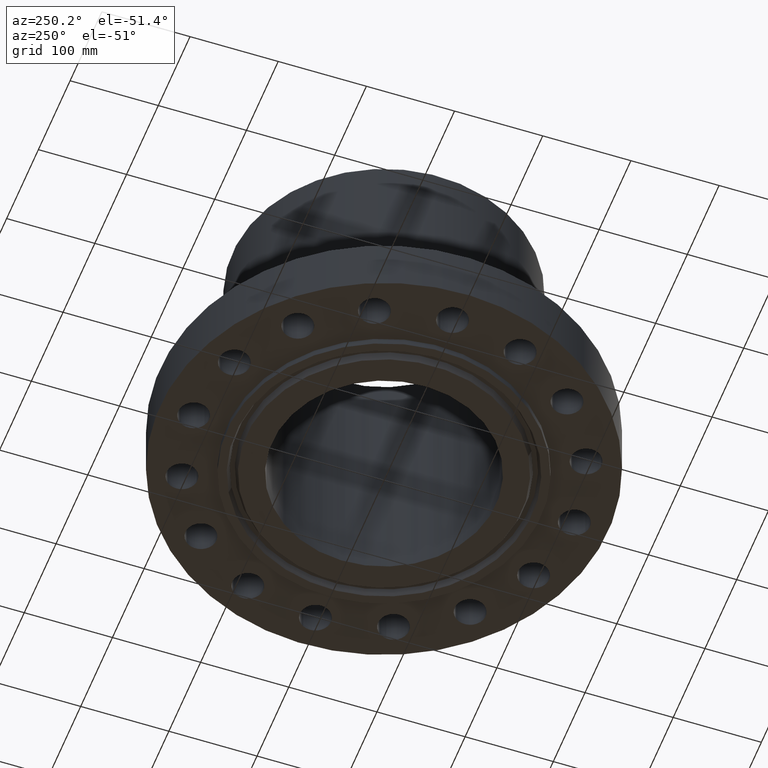
[diagram: clean part render]
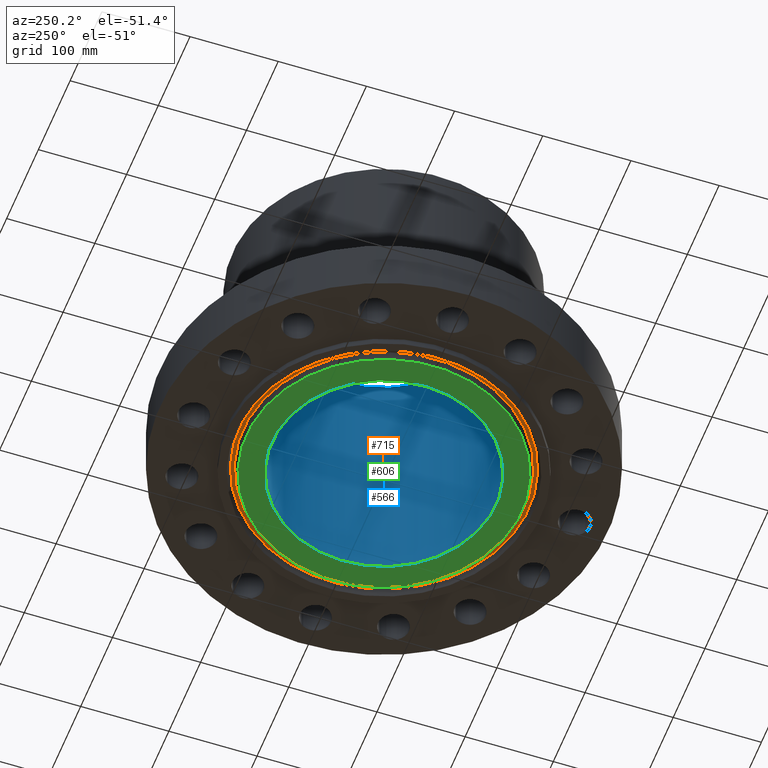
[diagram: same view with three faces highlighted in distinct colors, each labeled with its STEP entity id]
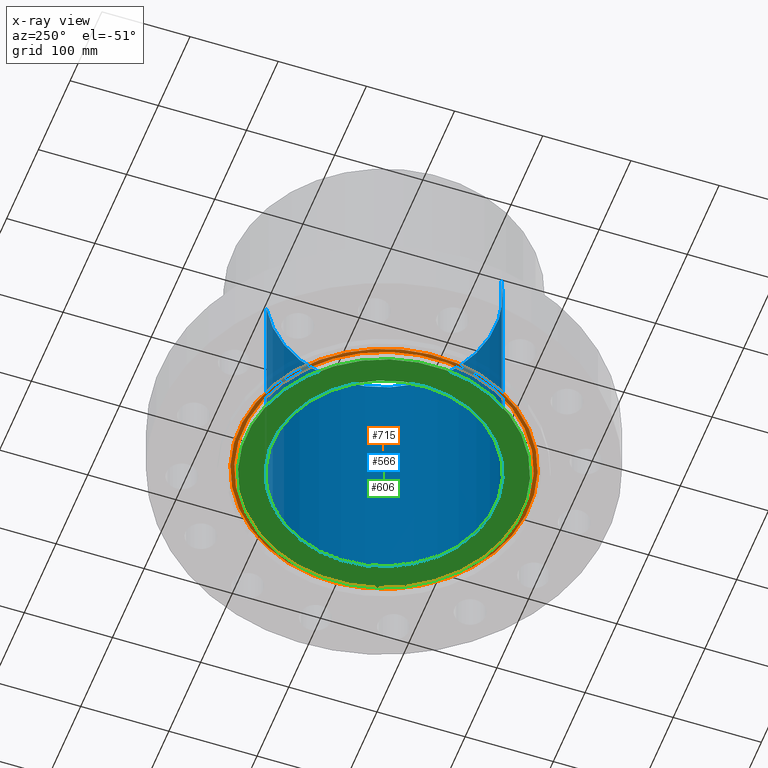
[diagram: x-ray of the same camera — body ghosted, the three highlighted faces saturated]
A machine part, auxiliary view with three faces highlighted in distinct colors.
The next image is the same camera in x-ray (body ghosted, the three faces saturated) — at least one of them is partly hidden behind the body in this view.
Their STEP definitions:

[orange] entity #715 — the highlighted planar face has unit normal (0, 0, -1).
#78=AXIS2_PLACEMENT_3D('Plane Axis2P3D',#75,#76,#77) ;
#664=AXIS2_PLACEMENT_3D('Circle Axis2P3D',#662,#663,$) ;
#683=AXIS2_PLACEMENT_3D('Circle Axis2P3D',#681,#682,$) ;
#695=AXIS2_PLACEMENT_3D('Circle Axis2P3D',#693,#694,$) ;
#704=AXIS2_PLACEMENT_3D('Circle Axis2P3D',#702,#703,$) ;
#75=CARTESIAN_POINT('Axis2P3D Location',(0.,6.2938790699,0.)) ;
#659=CARTESIAN_POINT('Vertex',(-3.01744636299,-5.52339851839,3.36563672819E-016)) ;
#662=CARTESIAN_POINT('Axis2P3D Location',(0.,0.,3.36563672819E-016)) ;
#666=CARTESIAN_POINT('Vertex',(3.01744636299,5.52339851839,3.36563672819E-016)) ;
#681=CARTESIAN_POINT('Axis2P3D Location',(0.,0.,3.36563672819E-016)) ;
#693=CARTESIAN_POINT('Axis2P3D Location',(0.,0.,0.)) ;
#697=CARTESIAN_POINT('Vertex',(-3.09522925423,-5.66577914576,-1.22386790116E-016)) ;
#699=CARTESIAN_POINT('Vertex',(3.09522925423,5.66577914576,-1.22386790116E-016)) ;
#702=CARTESIAN_POINT('Axis2P3D Location',(0.,0.,0.)) ;
#76=DIRECTION('Axis2P3D Direction',(0.,0.,-0.0393700787402)) ;
#77=DIRECTION('Axis2P3D XDirection',(0.0393700787402,0.,0.)) ;
#663=DIRECTION('Axis2P3D Direction',(0.,0.,-0.0393700787402)) ;
#682=DIRECTION('Axis2P3D Direction',(0.,0.,-0.0393700787402)) ;
#694=DIRECTION('Axis2P3D Direction',(0.,0.,-0.0393700787402)) ;
#703=DIRECTION('Axis2P3D Direction',(0.,0.,-0.0393700787402)) ;
#708=ORIENTED_EDGE('',*,*,#701,.T.) ;
#709=ORIENTED_EDGE('',*,*,#706,.T.) ;
#712=ORIENTED_EDGE('',*,*,#685,.F.) ;
#713=ORIENTED_EDGE('',*,*,#668,.F.) ;
#714=FACE_BOUND('',#711,.T.) ;
#715=ADVANCED_FACE('PartBody',(#710,#714),#79,.T.) ;
#665=CIRCLE('generated circle',#664,6.2938790699) ;
#684=CIRCLE('generated circle',#683,6.2938790699) ;
#696=CIRCLE('generated circle',#695,6.45612093016) ;
#705=CIRCLE('generated circle',#704,6.45612093016) ;
#668=EDGE_CURVE('',#660,#667,#665,.T.) ;
#685=EDGE_CURVE('',#667,#660,#684,.T.) ;
#701=EDGE_CURVE('',#698,#700,#696,.T.) ;
#706=EDGE_CURVE('',#700,#698,#705,.T.) ;
#707=EDGE_LOOP('',(#708,#709)) ;
#711=EDGE_LOOP('',(#712,#713)) ;
#710=FACE_OUTER_BOUND('',#707,.T.) ;
#79=PLANE('',#78) ;
#660=VERTEX_POINT('',#659) ;
#667=VERTEX_POINT('',#666) ;
#698=VERTEX_POINT('',#697) ;
#700=VERTEX_POINT('',#699) ;

[blue] entity #566 — the highlighted cylindrical surface (partial cylindrical patch) has radius 127 mm, axis along (0, 0, -1).
#528=AXIS2_PLACEMENT_3D('Circle Axis2P3D',#526,#527,$) ;
#539=AXIS2_PLACEMENT_3D('Cylinder Axis2P3D',#536,#537,#538) ;
#550=AXIS2_PLACEMENT_3D('Circle Axis2P3D',#548,#549,$) ;
#521=CARTESIAN_POINT('Vertex',(-2.39712769303,-4.38791280947,11.75)) ;
#523=CARTESIAN_POINT('Vertex',(2.39712769303,4.38791280947,11.75)) ;
#526=CARTESIAN_POINT('Axis2P3D Location',(0.,0.,11.75)) ;
#536=CARTESIAN_POINT('Axis2P3D Location',(0.,0.,5.71850000002)) ;
#541=CARTESIAN_POINT('Line Origine',(2.39712769303,4.38791280947,5.71850000002)) ;
#545=CARTESIAN_POINT('Vertex',(2.39712769303,4.38791280947,-0.313000000001)) ;
#548=CARTESIAN_POINT('Axis2P3D Location',(0.,0.,-0.313000000001)) ;
#552=CARTESIAN_POINT('Vertex',(-2.39712769303,-4.38791280947,-0.313000000001)) ;
#555=CARTESIAN_POINT('Line Origine',(-2.39712769303,-4.38791280947,5.71850000002)) ;
#527=DIRECTION('Axis2P3D Direction',(0.,0.,-0.0393700787402)) ;
#537=DIRECTION('Axis2P3D Direction',(0.,0.,-0.0393700787402)) ;
#538=DIRECTION('Axis2P3D XDirection',(-0.0188750212049,-0.0345504945626,0.)) ;
#542=DIRECTION('Vector Direction',(0.,0.,-0.0393700787402)) ;
#549=DIRECTION('Axis2P3D Direction',(0.,0.,-0.0393700787402)) ;
#556=DIRECTION('Vector Direction',(0.,0.,-0.0393700787402)) ;
#543=VECTOR('Line Direction',#542,0.0393700787402) ;
#557=VECTOR('Line Direction',#556,0.0393700787402) ;
#561=ORIENTED_EDGE('',*,*,#530,.F.) ;
#562=ORIENTED_EDGE('',*,*,#547,.T.) ;
#563=ORIENTED_EDGE('',*,*,#554,.T.) ;
#564=ORIENTED_EDGE('',*,*,#559,.F.) ;
#566=ADVANCED_FACE('PartBody',(#565),#540,.F.) ;
#529=CIRCLE('generated circle',#528,5.00000000002) ;
#551=CIRCLE('generated circle',#550,5.00000000002) ;
#540=CYLINDRICAL_SURFACE('generated cylinder',#539,5.00000000002) ;
#530=EDGE_CURVE('',#524,#522,#529,.T.) ;
#547=EDGE_CURVE('',#524,#546,#544,.T.) ;
#554=EDGE_CURVE('',#546,#553,#551,.T.) ;
#559=EDGE_CURVE('',#522,#553,#558,.T.) ;
#560=EDGE_LOOP('',(#561,#562,#563,#564)) ;
#565=FACE_OUTER_BOUND('',#560,.T.) ;
#544=LINE('Line',#541,#543) ;
#558=LINE('Line',#555,#557) ;
#522=VERTEX_POINT('',#521) ;
#524=VERTEX_POINT('',#523) ;
#546=VERTEX_POINT('',#545) ;
#553=VERTEX_POINT('',#552) ;

[green] entity #606 — the highlighted planar face has unit normal (0, 0, -1).
#550=AXIS2_PLACEMENT_3D('Circle Axis2P3D',#548,#549,$) ;
#569=AXIS2_PLACEMENT_3D('Circle Axis2P3D',#567,#568,$) ;
#582=AXIS2_PLACEMENT_3D('Plane Axis2P3D',#579,#580,#581) ;
#586=AXIS2_PLACEMENT_3D('Circle Axis2P3D',#584,#585,$) ;
#595=AXIS2_PLACEMENT_3D('Circle Axis2P3D',#593,#594,$) ;
#545=CARTESIAN_POINT('Vertex',(2.39712769303,4.38791280947,-0.313000000001)) ;
#548=CARTESIAN_POINT('Axis2P3D Location',(0.,0.,-0.313000000001)) ;
#552=CARTESIAN_POINT('Vertex',(-2.39712769303,-4.38791280947,-0.313000000001)) ;
#567=CARTESIAN_POINT('Axis2P3D Location',(0.,0.,-0.313000000001)) ;
#579=CARTESIAN_POINT('Axis2P3D Location',(0.,5.00000000002,-0.313000000001)) ;
#584=CARTESIAN_POINT('Axis2P3D Location',(0.,0.,-0.313000000001)) ;
#588=CARTESIAN_POINT('Vertex',(-2.94391251981,-5.38879572131,-0.313000000001)) ;
#590=CARTESIAN_POINT('Vertex',(2.94391251981,5.38879572131,-0.313000000001)) ;
#593=CARTESIAN_POINT('Axis2P3D Location',(0.,0.,-0.313000000001)) ;
#549=DIRECTION('Axis2P3D Direction',(0.,0.,-0.0393700787402)) ;
#568=DIRECTION('Axis2P3D Direction',(0.,0.,-0.0393700787402)) ;
#580=DIRECTION('Axis2P3D Direction',(0.,0.,-0.0393700787402)) ;
#581=DIRECTION('Axis2P3D XDirection',(0.0393700787402,0.,0.)) ;
#585=DIRECTION('Axis2P3D Direction',(0.,0.,-0.0393700787402)) ;
#594=DIRECTION('Axis2P3D Direction',(0.,0.,-0.0393700787402)) ;
#599=ORIENTED_EDGE('',*,*,#592,.T.) ;
#600=ORIENTED_EDGE('',*,*,#597,.T.) ;
#603=ORIENTED_EDGE('',*,*,#554,.F.) ;
#604=ORIENTED_EDGE('',*,*,#571,.F.) ;
#605=FACE_BOUND('',#602,.T.) ;
#606=ADVANCED_FACE('PartBody',(#601,#605),#583,.T.) ;
#551=CIRCLE('generated circle',#550,5.00000000002) ;
#570=CIRCLE('generated circle',#569,5.00000000002) ;
#587=CIRCLE('generated circle',#586,6.14050000002) ;
#596=CIRCLE('generated circle',#595,6.14050000002) ;
#554=EDGE_CURVE('',#546,#553,#551,.T.) ;
#571=EDGE_CURVE('',#553,#546,#570,.T.) ;
#592=EDGE_CURVE('',#589,#591,#587,.T.) ;
#597=EDGE_CURVE('',#591,#589,#596,.T.) ;
#598=EDGE_LOOP('',(#599,#600)) ;
#602=EDGE_LOOP('',(#603,#604)) ;
#601=FACE_OUTER_BOUND('',#598,.T.) ;
#583=PLANE('',#582) ;
#546=VERTEX_POINT('',#545) ;
#553=VERTEX_POINT('',#552) ;
#589=VERTEX_POINT('',#588) ;
#591=VERTEX_POINT('',#590) ;